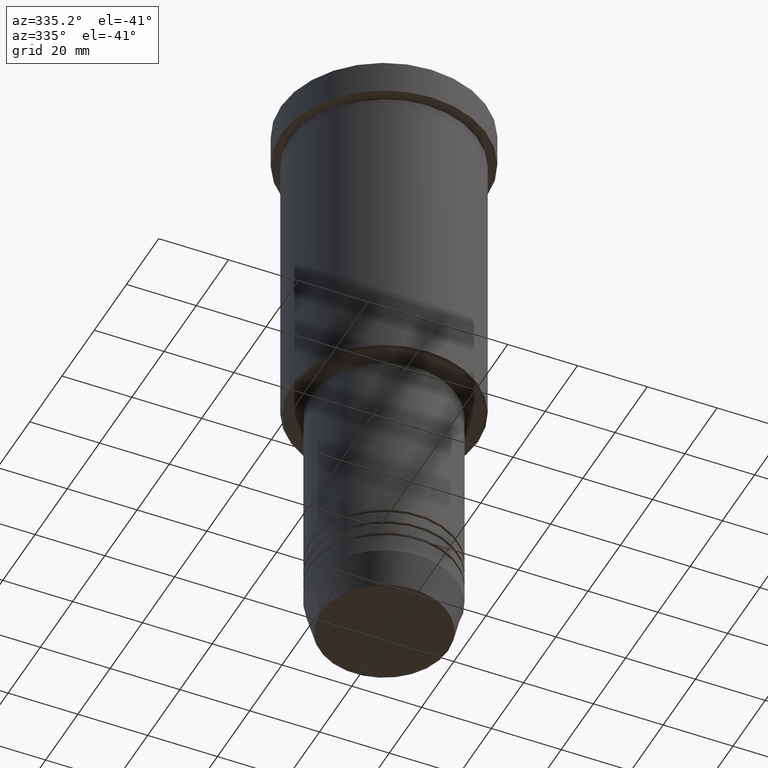
[diagram: clean part render]
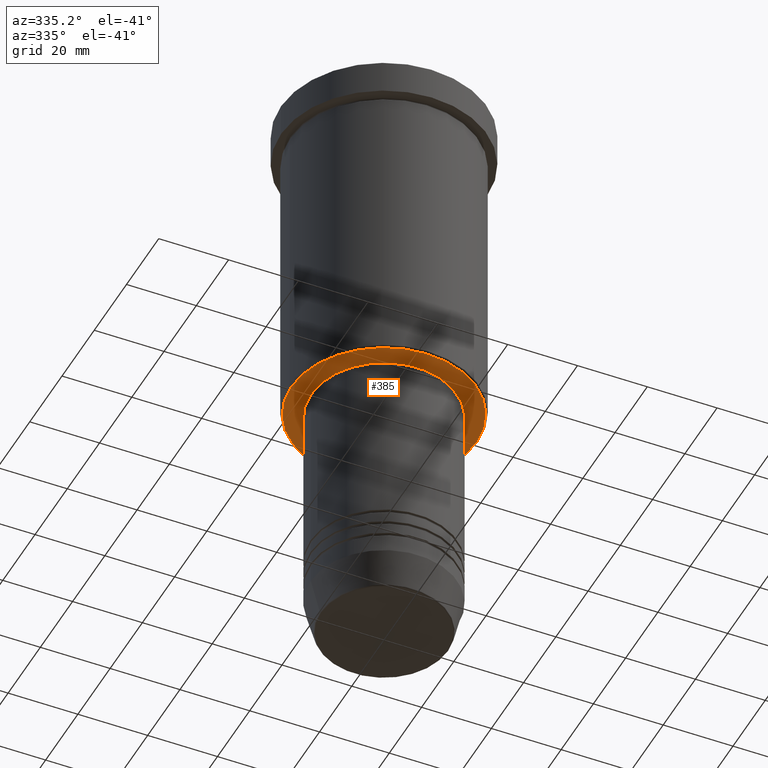
[diagram: same view with one face highlighted and labeled with its STEP entity id]
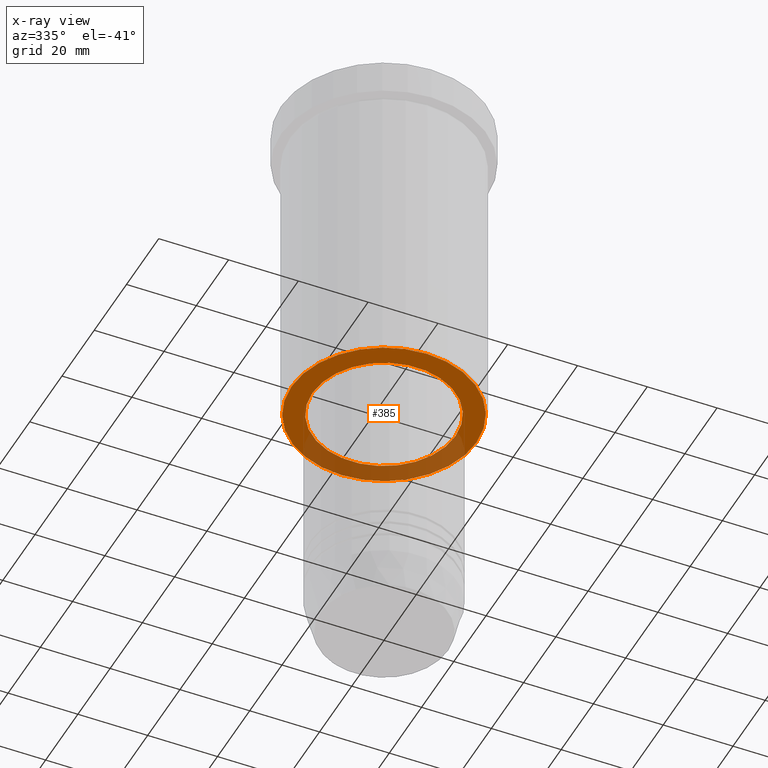
[diagram: x-ray of the same camera — body ghosted, the highlighted face saturated]
A machine part, auxiliary view. The second image highlights one B-rep face of the part: STEP entity #385.
The next image is the same camera in x-ray: the body ghosted, the highlighted face saturated — about 34% of this face is hidden behind the body in this view.
In plain terms, the highlighted planar face has unit normal (0, 0, -1).
Its self-contained STEP definition (entity closure, byte-faithful):
#31 = EDGE_CURVE ( 'NONE', #1047, #439, #671, .T. ) ;
#34 = DIRECTION ( 'NONE',  ( -1.000000000000000000, 0.000000000000000000, -0.000000000000000000 ) ) ;
#90 = AXIS2_PLACEMENT_3D ( 'NONE', #929, #475, #34 ) ;
#100 = ORIENTED_EDGE ( 'NONE', *, *, #829, .T. ) ;
#145 = ORIENTED_EDGE ( 'NONE', *, *, #408, .T. ) ;
#170 = VERTEX_POINT ( 'NONE', #823 ) ;
#172 = DIRECTION ( 'NONE',  ( -0.000000000000000000, -0.000000000000000000, 1.000000000000000000 ) ) ;
#223 = DIRECTION ( 'NONE',  ( 1.000000000000000000, 0.000000000000000000, 0.000000000000000000 ) ) ;
#225 = CIRCLE ( 'NONE', #965, 26.49999999999998224 ) ;
#268 = CARTESIAN_POINT ( 'NONE',  ( 0.000000000000000000, 0.000000000000000000, -95.99999999999997158 ) ) ;
#312 = FACE_OUTER_BOUND ( 'NONE', #822, .T. ) ;
#315 = AXIS2_PLACEMENT_3D ( 'NONE', #268, #172, #703 ) ;
#385 = ADVANCED_FACE ( 'NONE', ( #312, #668 ), #1138, .T. ) ;
#408 = EDGE_CURVE ( 'NONE', #439, #1047, #863, .T. ) ;
#409 = AXIS2_PLACEMENT_3D ( 'NONE', #1052, #851, #223 ) ;
#427 = CARTESIAN_POINT ( 'NONE',  ( 20.50000000000000000, 0.000000000000000000, -95.99999999999997158 ) ) ;
#439 = VERTEX_POINT ( 'NONE', #427 ) ;
#475 = DIRECTION ( 'NONE',  ( 0.000000000000000000, 0.000000000000000000, -1.000000000000000000 ) ) ;
#496 = CARTESIAN_POINT ( 'NONE',  ( -20.50000000000000000, 2.510525938252074481E-15, -95.99999999999997158 ) ) ;
#502 = CIRCLE ( 'NONE', #904, 26.49999999999998224 ) ;
#576 = ORIENTED_EDGE ( 'NONE', *, *, #31, .T. ) ;
#607 = DIRECTION ( 'NONE',  ( -1.000000000000000000, 0.000000000000000000, 0.000000000000000000 ) ) ;
#616 = CARTESIAN_POINT ( 'NONE',  ( 0.000000000000000000, 0.000000000000000000, -95.99999999999997158 ) ) ;
#668 = FACE_BOUND ( 'NONE', #913, .T. ) ;
#671 = CIRCLE ( 'NONE', #315, 20.50000000000000000 ) ;
#698 = CARTESIAN_POINT ( 'NONE',  ( 0.000000000000000000, 0.000000000000000000, -95.99999999999997158 ) ) ;
#703 = DIRECTION ( 'NONE',  ( 1.000000000000000000, 0.000000000000000000, 0.000000000000000000 ) ) ;
#721 = DIRECTION ( 'NONE',  ( -1.000000000000000000, 0.000000000000000000, 0.000000000000000000 ) ) ;
#805 = EDGE_CURVE ( 'NONE', #903, #170, #225, .T. ) ;
#822 = EDGE_LOOP ( 'NONE', ( #100, #886 ) ) ;
#823 = CARTESIAN_POINT ( 'NONE',  ( 26.49999999999998224, 0.000000000000000000, -95.99999999999997158 ) ) ;
#829 = EDGE_CURVE ( 'NONE', #170, #903, #502, .T. ) ;
#851 = DIRECTION ( 'NONE',  ( -0.000000000000000000, -0.000000000000000000, 1.000000000000000000 ) ) ;
#863 = CIRCLE ( 'NONE', #409, 20.50000000000000000 ) ;
#886 = ORIENTED_EDGE ( 'NONE', *, *, #805, .T. ) ;
#903 = VERTEX_POINT ( 'NONE', #1062 ) ;
#904 = AXIS2_PLACEMENT_3D ( 'NONE', #616, #996, #721 ) ;
#913 = EDGE_LOOP ( 'NONE', ( #145, #576 ) ) ;
#929 = CARTESIAN_POINT ( 'NONE',  ( 0.000000000000000000, 27.00000000000000355, -95.99999999999997158 ) ) ;
#965 = AXIS2_PLACEMENT_3D ( 'NONE', #698, #1080, #607 ) ;
#996 = DIRECTION ( 'NONE',  ( 0.000000000000000000, 0.000000000000000000, -1.000000000000000000 ) ) ;
#1047 = VERTEX_POINT ( 'NONE', #496 ) ;
#1052 = CARTESIAN_POINT ( 'NONE',  ( 0.000000000000000000, 0.000000000000000000, -95.99999999999997158 ) ) ;
#1062 = CARTESIAN_POINT ( 'NONE',  ( -26.49999999999998224, 3.275930187719168763E-15, -95.99999999999997158 ) ) ;
#1080 = DIRECTION ( 'NONE',  ( 0.000000000000000000, 0.000000000000000000, -1.000000000000000000 ) ) ;
#1138 = PLANE ( 'NONE',  #90 ) ;